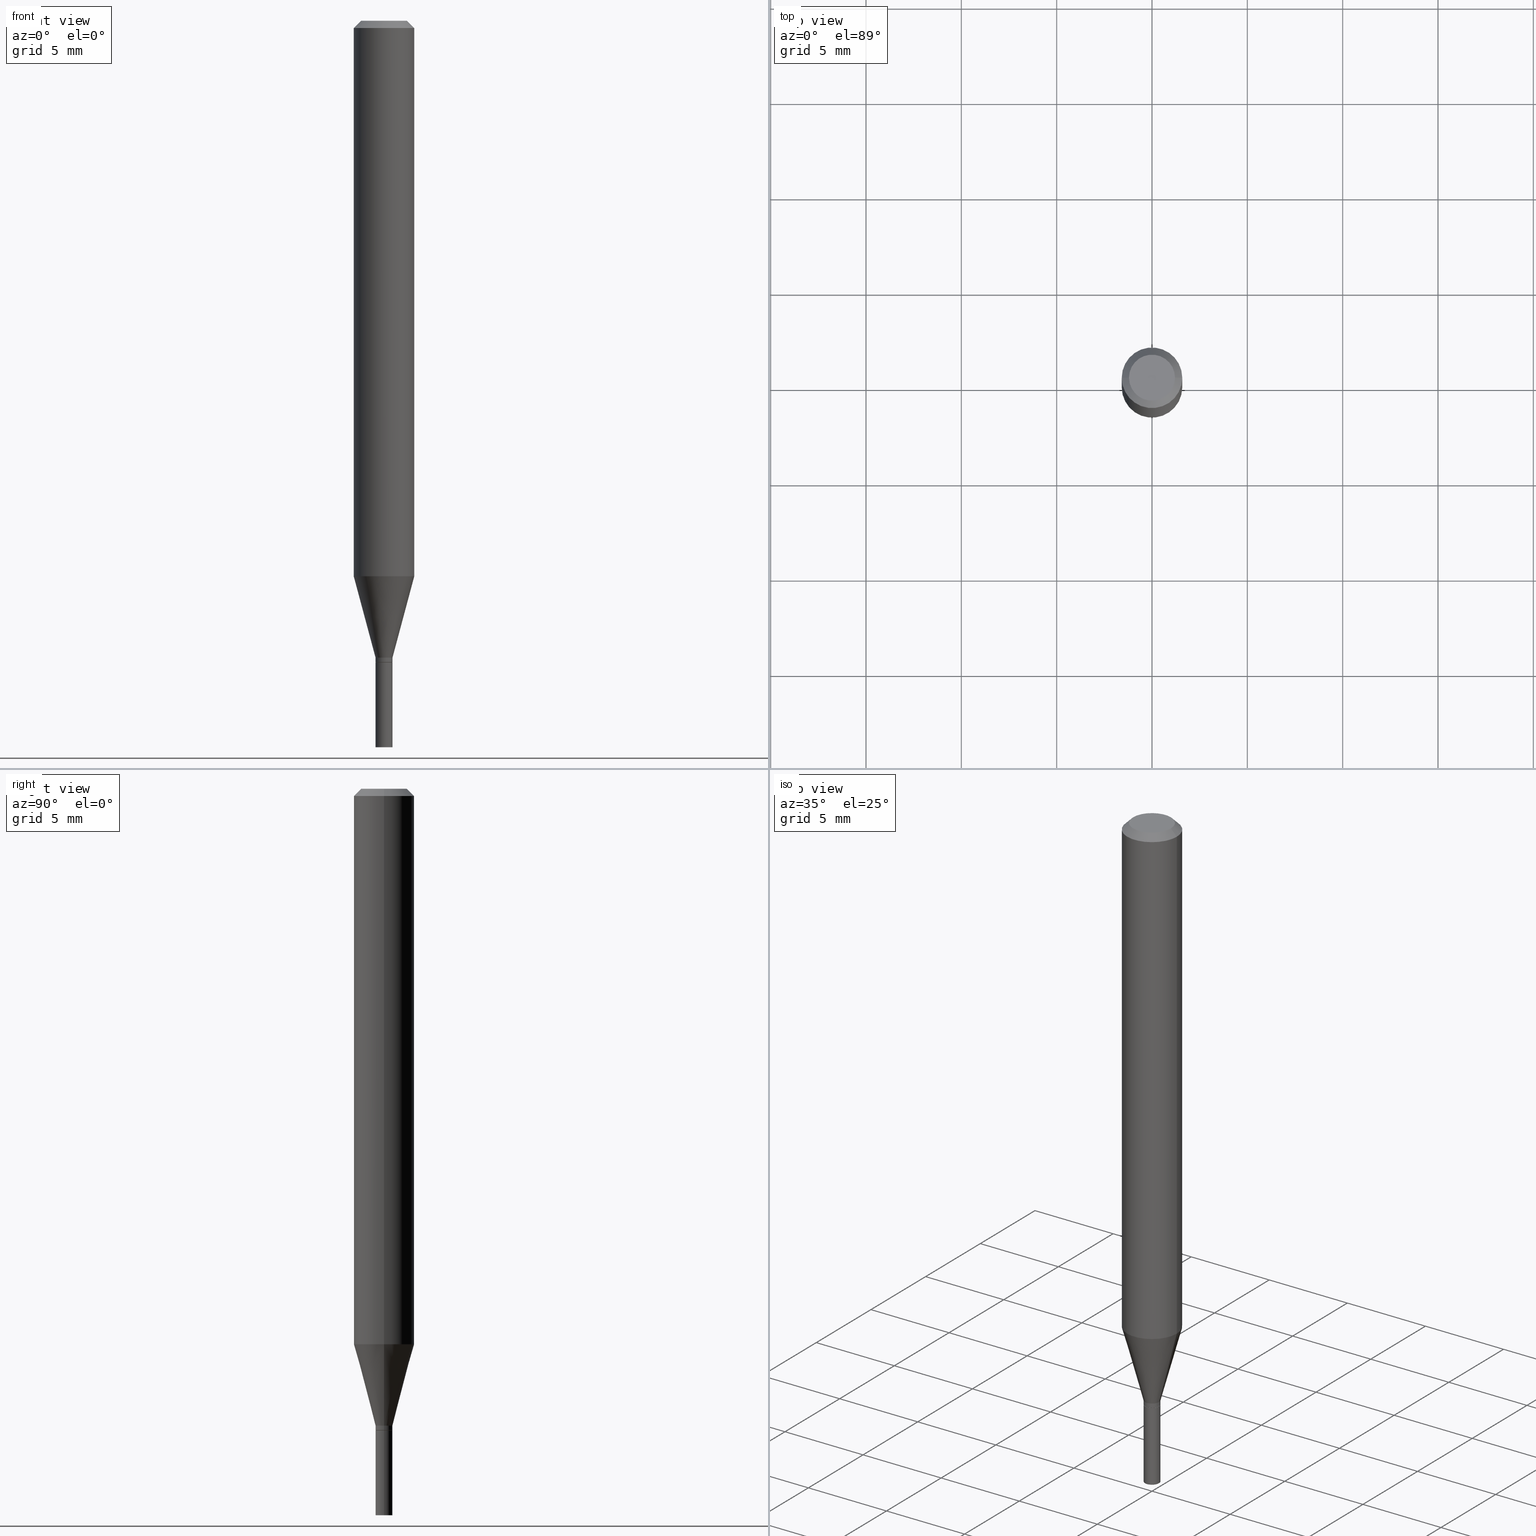
[diagram: canonical four-view strip — front | top / right | iso, engineering-drawing reading convention]
A machine part, canonical four-view strip (front | top / right | iso — engineering-drawing reading convention). The complete STEP part file that produces these views, byte-faithful:
ISO-10303-21;
HEADER;
FILE_DESCRIPTION (( 'STEP AP203' ),
    '1' );
FILE_NAME ('04188.STEP',
    '2024-03-14T17:14:41',
    ( '' ),
    ( '' ),
    'SwSTEP 2.0',
    'SolidWorks 2023',
    '' );
FILE_SCHEMA (( 'CONFIG_CONTROL_DESIGN' ));
ENDSEC;

DATA;
#1 = ORIENTED_EDGE ( 'NONE', *, *, #256, .T. ) ;
#2 = EDGE_CURVE ( 'NONE', #260, #407, #321, .T. ) ;
#3 = VERTEX_POINT ( 'NONE', #448 ) ;
#4 = DIRECTION ( 'NONE',  ( 1.000000000000000000, -6.982962677686267499E-15, 4.852736867747366768E-29 ) ) ;
#5 = CARTESIAN_POINT ( 'NONE',  ( 0.01749999999999991840, -1.222018468595091202E-16, 8.533309357642848751E-31 ) ) ;
#6 = CONICAL_SURFACE ( 'NONE', #94, 0.01749999999999991840, 0.2617993877991495744 ) ;
#7 = PRODUCT_DEFINITION_FORMATION_WITH_SPECIFIED_SOURCE ( 'ANY', '', #10, .NOT_KNOWN. ) ;
#8 = CARTESIAN_POINT ( 'NONE',  ( -0.01700000000000000122, -4.502771281713841500E-15, -1.325000000000000178 ) ) ;
#9 = COORDINATED_UNIVERSAL_TIME_OFFSET ( 5, 0, .BEHIND. ) ;
#10 = PRODUCT ( '04188', '04188', '', ( #261 ) ) ;
#11 = DIRECTION ( 'NONE',  ( 1.000000000000000000, -6.982962677686280910E-15, 0.000000000000000000 ) ) ;
#12 = DIRECTION ( 'NONE',  ( -1.000000000000000000, 6.982962677686266711E-15, 0.000000000000000000 ) ) ;
#13 = DIRECTION ( 'NONE',  ( 0.7071067811865585639, -7.319954787623292333E-15, -0.7071067811865364705 ) ) ;
#14 = DIRECTION ( 'NONE',  ( 1.000000000000000000, -6.982962677686274599E-15, 0.000000000000000000 ) ) ;
#15 = VECTOR ( 'NONE', #428, 39.37007874015748143 ) ;
#16 = EDGE_CURVE ( 'NONE', #407, #260, #397, .T. ) ;
#17 = ORIENTED_EDGE ( 'NONE', *, *, #2, .T. ) ;
#18 = CARTESIAN_POINT ( 'NONE',  ( 0.01700000000000000122, -4.744923139487835238E-15, -1.325000000000000178 ) ) ;
#19 = DIRECTION ( 'NONE',  ( -1.000000000000000000, 6.982962677686266711E-15, 0.000000000000000000 ) ) ;
#20 = LINE ( 'NONE', #257, #264 ) ;
#21 = ORIENTED_EDGE ( 'NONE', *, *, #457, .F. ) ;
#22 = FACE_OUTER_BOUND ( 'NONE', #402, .T. ) ;
#23 = ORIENTED_EDGE ( 'NONE', *, *, #268, .T. ) ;
#24 = EDGE_CURVE ( 'NONE', #183, #324, #127, .T. ) ;
#25 = CIRCLE ( 'NONE', #357, 0.01749999999999992187 ) ;
#26 = ORIENTED_EDGE ( 'NONE', *, *, #446, .F. ) ;
#27 = APPROVAL_ROLE ( '' ) ;
#28 = DIRECTION ( 'NONE',  ( 1.000000000000000000, -6.982962677686266711E-15, 4.876176775795935793E-29 ) ) ;
#29 = AXIS2_PLACEMENT_3D ( 'NONE', #423, #33, #4 ) ;
#30 = COORDINATED_UNIVERSAL_TIME_OFFSET ( 5, 0, .BEHIND. ) ;
#31 = LINE ( 'NONE', #335, #425 ) ;
#32 = DIRECTION ( 'NONE',  ( -2.445468806185136597E-29, 3.491481338843145583E-15, 1.000000000000000000 ) ) ;
#33 = DIRECTION ( 'NONE',  ( -2.445468806185136597E-29, 3.491481338843145583E-15, 1.000000000000000000 ) ) ;
#34 = VECTOR ( 'NONE', #13, 39.37007874015748143 ) ;
#35 = ORIENTED_EDGE ( 'NONE', *, *, #316, .T. ) ;
#36 = EDGE_CURVE ( 'NONE', #61, #152, #202, .T. ) ;
#37 = APPLICATION_CONTEXT ( 'configuration controlled 3d designs of mechanical parts and assemblies' ) ;
#38 =( NAMED_UNIT ( * ) PLANE_ANGLE_UNIT ( ) SI_UNIT ( $, .RADIAN. ) );
#39 = EDGE_LOOP ( 'NONE', ( #437, #278, #126, #275 ) ) ;
#40 = CARTESIAN_POINT ( 'NONE',  ( -0.01749999999999992187, -4.500122054539731087E-15, -1.324500000000000233 ) ) ;
#41 = ADVANCED_FACE ( 'NONE', ( #377 ), #55, .F. ) ;
#42 = PRODUCT_DEFINITION ( 'UNKNOWN', '', #7, #259 ) ;
#43 = CIRCLE ( 'NONE', #350, 0.01750000000000000167 ) ;
#44 = ORIENTED_EDGE ( 'NONE', *, *, #172, .F. ) ;
#45 = CC_DESIGN_SECURITY_CLASSIFICATION ( #210, ( #7 ) ) ;
#46 = DIRECTION ( 'NONE',  ( -2.445468806185136597E-29, 3.491481338843145583E-15, 1.000000000000000000 ) ) ;
#47 = EDGE_LOOP ( 'NONE', ( #391, #144 ) ) ;
#48 = CARTESIAN_POINT ( 'NONE',  ( 3.240246168195306775E-29, -4.626212773967169051E-15, -1.325000000000000178 ) ) ;
#49 = CARTESIAN_POINT ( 'NONE',  ( 3.240246168195306775E-29, -4.626212773967169051E-15, -1.325000000000000178 ) ) ;
#50 = ADVANCED_FACE ( 'NONE', ( #369 ), #451, .T. ) ;
#51 = DIRECTION ( 'NONE',  ( -2.445468806185136877E-29, 3.491481338843145188E-15, 1.000000000000000000 ) ) ;
#52 = VERTEX_POINT ( 'NONE', #117 ) ;
#53 = AXIS2_PLACEMENT_3D ( 'NONE', #306, #93, #459 ) ;
#54 = CC_DESIGN_PERSON_AND_ORGANIZATION_ASSIGNMENT ( #167, #266, ( #7 ) ) ;
#55 = PLANE ( 'NONE',  #375 ) ;
#56 = LINE ( 'NONE', #363, #105 ) ;
#57 = ORIENTED_EDGE ( 'NONE', *, *, #416, .T. ) ;
#58 = DIRECTION ( 'NONE',  ( 0.7071067811865642261, -2.468850131082431399E-15, 0.7071067811865309194 ) ) ;
#59 = DIRECTION ( 'NONE',  ( 2.445468806185136597E-29, -3.491481338843145583E-15, -1.000000000000000000 ) ) ;
#60 = FACE_OUTER_BOUND ( 'NONE', #213, .T. ) ;
#61 = VERTEX_POINT ( 'NONE', #90 ) ;
#62 = EDGE_LOOP ( 'NONE', ( #190, #139, #176, #113 ) ) ;
#63 = CIRCLE ( 'NONE', #29, 0.04749999999999999362 ) ;
#64 = ADVANCED_FACE ( 'NONE', ( #110 ), #154, .T. ) ;
#65 = PERSON_AND_ORGANIZATION ( #443, #421 ) ;
#66 = CC_DESIGN_APPROVAL ( #98, ( #210 ) ) ;
#67 = DIRECTION ( 'NONE',  ( -2.445468806185136597E-29, 3.491481338843145583E-15, 1.000000000000000000 ) ) ;
#68 = APPROVAL_STATUS ( 'not_yet_approved' ) ;
#69 = COORDINATED_UNIVERSAL_TIME_OFFSET ( 5, 0, .BEHIND. ) ;
#70 = DIRECTION ( 'NONE',  ( -2.445468806185136597E-29, 3.491481338843145583E-15, 1.000000000000000000 ) ) ;
#71 = CIRCLE ( 'NONE', #239, 0.01749999999999991840 ) ;
#72 = LENGTH_MEASURE_WITH_UNIT ( LENGTH_MEASURE( 0.02539999999999999897 ), #389 );
#73 = EDGE_LOOP ( 'NONE', ( #394, #1, #150, #171 ) ) ;
#74 = LINE ( 'NONE', #182, #209 ) ;
#75 = LINE ( 'NONE', #276, #232 ) ;
#76 = CARTESIAN_POINT ( 'NONE',  ( 0.000000000000000000, 0.000000000000000000, 0.000000000000000000 ) ) ;
#77 = CIRCLE ( 'NONE', #186, 0.04749999999999999362 ) ;
#78 = EDGE_LOOP ( 'NONE', ( #124, #212, #83, #89 ) ) ;
#79 = ADVANCED_FACE ( 'NONE', ( #96 ), #380, .T. ) ;
#80 = CARTESIAN_POINT ( 'NONE',  ( 3.668203209277704895E-29, -5.237222008264718177E-15, -1.500000000000000222 ) ) ;
#81 = ADVANCED_BREP_SHAPE_REPRESENTATION ( '04188', ( #333, #328, #405 ), #137 ) ;
#82 = LINE ( 'NONE', #373, #34 ) ;
#83 = ORIENTED_EDGE ( 'NONE', *, *, #217, .T. ) ;
#84 = CARTESIAN_POINT ( 'NONE',  ( 3.576687321579069994E-29, -5.368277968210015545E-15, -1.500000000000000222 ) ) ;
#85 = EDGE_LOOP ( 'NONE', ( #431, #119, #189, #295 ) ) ;
#86 = VECTOR ( 'NONE', #88, 39.37007874015748143 ) ;
#87 = DIMENSIONAL_EXPONENTS ( 1.000000000000000000, 0.000000000000000000, 0.000000000000000000, 0.000000000000000000, 0.000000000000000000, 0.000000000000000000, 0.000000000000000000 ) ;
#88 = DIRECTION ( 'NONE',  ( -2.445468806185136877E-29, 3.491481338843145188E-15, 1.000000000000000000 ) ) ;
#89 = ORIENTED_EDGE ( 'NONE', *, *, #172, .T. ) ;
#90 = CARTESIAN_POINT ( 'NONE',  ( -0.01749999999999991840, -4.013897186894268537E-15, -1.314999999999999947 ) ) ;
#91 = ORIENTED_EDGE ( 'NONE', *, *, #195, .T. ) ;
#92 = FACE_OUTER_BOUND ( 'NONE', #47, .T. ) ;
#93 = DIRECTION ( 'NONE',  ( -2.438088387897960049E-29, 3.491481338843145188E-15, 1.000000000000000000 ) ) ;
#94 = AXIS2_PLACEMENT_3D ( 'NONE', #220, #118, #291 ) ;
#95 = APPROVAL_ROLE ( '' ) ;
#96 = FACE_OUTER_BOUND ( 'NONE', #208, .T. ) ;
#97 = CARTESIAN_POINT ( 'NONE',  ( 0.01749999999999991840, -4.713499807438245807E-15, -1.314999999999999947 ) ) ;
#98 = APPROVAL ( #68, 'UNSPECIFIED' ) ;
#99 = CONICAL_SURFACE ( 'NONE', #128, 0.06250000000000000000, 0.7853981633974639331 ) ;
#100 = PERSON_AND_ORGANIZATION_ROLE ( 'creator' ) ;
#101 = DIRECTION ( 'NONE',  ( -2.445468806185136597E-29, 3.491481338843145583E-15, 1.000000000000000000 ) ) ;
#102 = EDGE_CURVE ( 'NONE', #299, #161, #25, .T. ) ;
#103 = AXIS2_PLACEMENT_3D ( 'NONE', #329, #59, #19 ) ;
#104 = FACE_OUTER_BOUND ( 'NONE', #85, .T. ) ;
#105 = VECTOR ( 'NONE', #319, 39.37007874015748143 ) ;
#106 = LOCAL_TIME ( 13, 14, 41.00000000000000000, #30 ) ;
#107 = ORIENTED_EDGE ( 'NONE', *, *, #316, .F. ) ;
#108 = ORIENTED_EDGE ( 'NONE', *, *, #457, .T. ) ;
#109 = EDGE_CURVE ( 'NONE', #285, #351, #149, .T. ) ;
#110 = FACE_OUTER_BOUND ( 'NONE', #371, .T. ) ;
#111 = APPLICATION_CONTEXT ( 'configuration controlled 3d designs of mechanical parts and assemblies' ) ;
#112 = DIRECTION ( 'NONE',  ( 1.000000000000000000, -6.982962677686268288E-15, 4.876176775795936353E-29 ) ) ;
#113 = ORIENTED_EDGE ( 'NONE', *, *, #109, .F. ) ;
#114 = DIRECTION ( 'NONE',  ( 1.000000000000000000, -6.982962677686248567E-15, 0.000000000000000000 ) ) ;
#115 = EDGE_LOOP ( 'NONE', ( #35, #427, #435, #327 ) ) ;
#116 = ADVANCED_FACE ( 'NONE', ( #92 ), #125, .F. ) ;
#117 = CARTESIAN_POINT ( 'NONE',  ( 0.04749999999999999362, -4.035134999187586019E-16, -4.684051019975741414E-16 ) ) ;
#118 = DIRECTION ( 'NONE',  ( -2.445468806185136597E-29, 3.491481338843145583E-15, 1.000000000000000000 ) ) ;
#119 = ORIENTED_EDGE ( 'NONE', *, *, #249, .T. ) ;
#120 = CONICAL_SURFACE ( 'NONE', #365, 0.01749999999999991840, 0.2617993877991495744 ) ;
#121 = PERSON_AND_ORGANIZATION_ROLE ( 'design_owner' ) ;
#122 = DIRECTION ( 'NONE',  ( 1.000000000000000000, -6.982962677686267499E-15, 4.852736867747366768E-29 ) ) ;
#123 = CARTESIAN_POINT ( 'NONE',  ( 0.000000000000000000, 0.000000000000000000, 0.000000000000000000 ) ) ;
#124 = ORIENTED_EDGE ( 'NONE', *, *, #256, .F. ) ;
#125 = PLANE ( 'NONE',  #403 ) ;
#126 = ORIENTED_EDGE ( 'NONE', *, *, #392, .T. ) ;
#127 = CIRCLE ( 'NONE', #246, 0.01750000000000000167 ) ;
#128 = AXIS2_PLACEMENT_3D ( 'NONE', #242, #348, #12 ) ;
#129 = DATE_AND_TIME ( #132, #240 ) ;
#130 = EDGE_CURVE ( 'NONE', #152, #61, #71, .T. ) ;
#131 = DATE_TIME_ROLE ( 'classification_date' ) ;
#132 = CALENDAR_DATE ( 2024, 14, 3 ) ;
#133 = AXIS2_PLACEMENT_3D ( 'NONE', #409, #193, #14 ) ;
#134 = EDGE_CURVE ( 'NONE', #300, #52, #63, .T. ) ;
#135 = CIRCLE ( 'NONE', #398, 0.06250000000000000000 ) ;
#136 = SHAPE_DEFINITION_REPRESENTATION ( #244, #81 ) ;
#137 =( GEOMETRIC_REPRESENTATION_CONTEXT ( 3 ) GLOBAL_UNCERTAINTY_ASSIGNED_CONTEXT ( ( #301 ) ) GLOBAL_UNIT_ASSIGNED_CONTEXT ( ( #206, #38, #277 ) ) REPRESENTATION_CONTEXT ( 'NONE', 'WORKASPACE' ) );
#138 = CARTESIAN_POINT ( 'NONE',  ( 0.000000000000000000, 0.000000000000000000, 0.000000000000000000 ) ) ;
#139 = ORIENTED_EDGE ( 'NONE', *, *, #36, .T. ) ;
#140 = ORIENTED_EDGE ( 'NONE', *, *, #438, .T. ) ;
#141 = VECTOR ( 'NONE', #399, 39.37007874015748143 ) ;
#142 = CC_DESIGN_APPROVAL ( #331, ( #7 ) ) ;
#143 = LINE ( 'NONE', #5, #86 ) ;
#144 = ORIENTED_EDGE ( 'NONE', *, *, #411, .T. ) ;
#145 = CARTESIAN_POINT ( 'NONE',  ( 0.01750000000000000167, -4.748414620826678245E-15, -1.325000000000000178 ) ) ;
#146 = EDGE_CURVE ( 'NONE', #351, #3, #75, .T. ) ;
#147 = CARTESIAN_POINT ( 'NONE',  ( -0.06250000000000000000, 4.440892098500626162E-16, -3.074334431409316114E-30 ) ) ;
#148 = CYLINDRICAL_SURFACE ( 'NONE', #162, 0.06250000000000000000 ) ;
#149 = CIRCLE ( 'NONE', #302, 0.06250000000000000000 ) ;
#150 = ORIENTED_EDGE ( 'NONE', *, *, #446, .T. ) ;
#151 = CARTESIAN_POINT ( 'NONE',  ( 3.239023433792214535E-29, -4.624467033297747547E-15, -1.324500000000000233 ) ) ;
#152 = VERTEX_POINT ( 'NONE', #313 ) ;
#153 = DIRECTION ( 'NONE',  ( -0.7071067811865642261, 7.493145998870414114E-15, 0.7071067811865309194 ) ) ;
#154 = CYLINDRICAL_SURFACE ( 'NONE', #178, 0.06250000000000000000 ) ;
#155 = DIRECTION ( 'NONE',  ( -0.2588190451025209060, 5.211531920934547097E-15, 0.9659258262890682012 ) ) ;
#156 = CARTESIAN_POINT ( 'NONE',  ( 3.240246168195306775E-29, -4.626212773967169051E-15, -1.325000000000000178 ) ) ;
#157 = ADVANCED_FACE ( 'NONE', ( #104 ), #395, .T. ) ;
#158 = DIRECTION ( 'NONE',  ( 1.000000000000000000, -6.982962677686266711E-15, 0.000000000000000000 ) ) ;
#159 = FACE_OUTER_BOUND ( 'NONE', #289, .T. ) ;
#160 = CLOSED_SHELL ( 'NONE', ( #157, #181, #50, #64, #296, #203, #424, #378, #116, #352, #197, #304 ) ) ;
#161 = VERTEX_POINT ( 'NONE', #40 ) ;
#162 = AXIS2_PLACEMENT_3D ( 'NONE', #185, #294, #404 ) ;
#163 = DIRECTION ( 'NONE',  ( 1.000000000000000000, -6.982962677686280910E-15, 0.000000000000000000 ) ) ;
#164 = ORIENTED_EDGE ( 'NONE', *, *, #307, .T. ) ;
#165 = DATE_AND_TIME ( #346, #179 ) ;
#166 = CARTESIAN_POINT ( 'NONE',  ( 2.805093857648105746E-29, -4.004930601817881115E-15, -1.147057713659400457 ) ) ;
#167 = PERSON_AND_ORGANIZATION ( #443, #421 ) ;
#168 = DIRECTION ( 'NONE',  ( -2.445468806185136597E-29, 3.491481338843145583E-15, 1.000000000000000000 ) ) ;
#169 = DIRECTION ( 'NONE',  ( -2.445468806185136597E-29, 3.491481338843145583E-15, 1.000000000000000000 ) ) ;
#170 = COORDINATED_UNIVERSAL_TIME_OFFSET ( 5, 0, .BEHIND. ) ;
#171 = ORIENTED_EDGE ( 'NONE', *, *, #217, .F. ) ;
#172 = EDGE_CURVE ( 'NONE', #221, #3, #413, .T. ) ;
#173 = FACE_OUTER_BOUND ( 'NONE', #62, .T. ) ;
#174 = ORIENTED_EDGE ( 'NONE', *, *, #340, .F. ) ;
#175 = APPROVAL ( #337, 'UNSPECIFIED' ) ;
#176 = ORIENTED_EDGE ( 'NONE', *, *, #358, .T. ) ;
#177 = FACE_OUTER_BOUND ( 'NONE', #293, .T. ) ;
#178 = AXIS2_PLACEMENT_3D ( 'NONE', #343, #67, #28 ) ;
#179 = LOCAL_TIME ( 13, 14, 41.00000000000000000, #414 ) ;
#180 = VERTEX_POINT ( 'NONE', #463 ) ;
#181 = ADVANCED_FACE ( 'NONE', ( #177 ), #376, .T. ) ;
#182 = CARTESIAN_POINT ( 'NONE',  ( -0.06250000000000000000, 3.840629472727444916E-16, -0.01499999999999999944 ) ) ;
#183 = VERTEX_POINT ( 'NONE', #145 ) ;
#184 = DIRECTION ( 'NONE',  ( -2.445468806185136597E-29, 3.491481338843145583E-15, 1.000000000000000000 ) ) ;
#185 = CARTESIAN_POINT ( 'NONE',  ( 0.000000000000000000, 0.000000000000000000, 0.000000000000000000 ) ) ;
#186 = AXIS2_PLACEMENT_3D ( 'NONE', #290, #433, #122 ) ;
#187 = DIRECTION ( 'NONE',  ( 2.438088387897960049E-29, -3.491481338843145188E-15, -1.000000000000000000 ) ) ;
#188 = DIRECTION ( 'NONE',  ( 1.000000000000000000, -6.982962677686248567E-15, 0.000000000000000000 ) ) ;
#189 = ORIENTED_EDGE ( 'NONE', *, *, #130, .F. ) ;
#190 = ORIENTED_EDGE ( 'NONE', *, *, #268, .F. ) ;
#191 = ORIENTED_EDGE ( 'NONE', *, *, #307, .F. ) ;
#192 = AXIS2_PLACEMENT_3D ( 'NONE', #156, #216, #255 ) ;
#193 = DIRECTION ( 'NONE',  ( -2.445468806185136597E-29, 3.491481338843145583E-15, 1.000000000000000000 ) ) ;
#194 = CIRCLE ( 'NONE', #464, 0.01750000000000000167 ) ;
#195 = EDGE_CURVE ( 'NONE', #351, #285, #271, .T. ) ;
#196 = CARTESIAN_POINT ( 'NONE',  ( 0.01750000000000000167, -5.359423855124228160E-15, -1.500000000000000222 ) ) ;
#197 = ADVANCED_FACE ( 'NONE', ( #274 ), #420, .T. ) ;
#198 = PERSON_AND_ORGANIZATION_ROLE ( 'design_supplier' ) ;
#199 = AXIS2_PLACEMENT_3D ( 'NONE', #123, #430, #112 ) ;
#200 = APPROVAL_PERSON_ORGANIZATION ( #342, #98, #95 ) ;
#201 = APPROVAL_STATUS ( 'not_yet_approved' ) ;
#202 = CIRCLE ( 'NONE', #461, 0.01749999999999991840 ) ;
#203 = ADVANCED_FACE ( 'NONE', ( #173 ), #120, .T. ) ;
#204 = AXIS2_PLACEMENT_3D ( 'NONE', #323, #383, #344 ) ;
#205 = DIRECTION ( 'NONE',  ( 1.000000000000000000, -6.982962677686274599E-15, 0.000000000000000000 ) ) ;
#206 =( CONVERSION_BASED_UNIT ( 'INCH', #72 ) LENGTH_UNIT ( ) NAMED_UNIT ( #87 ) );
#207 = CC_DESIGN_DATE_AND_TIME_ASSIGNMENT ( #165, #131, ( #210 ) ) ;
#208 = EDGE_LOOP ( 'NONE', ( #174, #108, #140, #191 ) ) ;
#209 = VECTOR ( 'NONE', #353, 39.37007874015748143 ) ;
#210 = SECURITY_CLASSIFICATION ( '', '', #233 ) ;
#211 = PRODUCT_RELATED_PRODUCT_CATEGORY ( 'detail', '', ( #10 ) ) ;
#212 = ORIENTED_EDGE ( 'NONE', *, *, #134, .F. ) ;
#213 = EDGE_LOOP ( 'NONE', ( #412, #336, #245, #227 ) ) ;
#214 = DIRECTION ( 'NONE',  ( 1.000000000000000000, -6.982962677686265922E-15, 4.876176775795936353E-29 ) ) ;
#215 = FACE_OUTER_BOUND ( 'NONE', #354, .T. ) ;
#216 = DIRECTION ( 'NONE',  ( -2.445468806185136597E-29, 3.491481338843145583E-15, 1.000000000000000000 ) ) ;
#217 = EDGE_CURVE ( 'NONE', #300, #221, #74, .T. ) ;
#218 = DIRECTION ( 'NONE',  ( -2.445468806185136597E-29, 3.491481338843145583E-15, 1.000000000000000000 ) ) ;
#219 = AXIS2_PLACEMENT_3D ( 'NONE', #390, #70, #205 ) ;
#220 = CARTESIAN_POINT ( 'NONE',  ( 3.215791480133454670E-29, -4.591297960578735824E-15, -1.314999999999999947 ) ) ;
#221 = VERTEX_POINT ( 'NONE', #456 ) ;
#222 = PERSON_AND_ORGANIZATION ( #443, #421 ) ;
#223 = LINE ( 'NONE', #396, #141 ) ;
#224 = ORIENTED_EDGE ( 'NONE', *, *, #16, .F. ) ;
#225 = DIRECTION ( 'NONE',  ( 1.000000000000000000, -6.982962677686265922E-15, 4.876176775795935793E-29 ) ) ;
#226 = EDGE_CURVE ( 'NONE', #299, #152, #143, .T. ) ;
#227 = ORIENTED_EDGE ( 'NONE', *, *, #36, .F. ) ;
#228 = APPLICATION_PROTOCOL_DEFINITION ( 'international standard', 'config_control_design', 1994, #111 ) ;
#229 = AXIS2_PLACEMENT_3D ( 'NONE', #84, #298, #225 ) ;
#230 = DATE_AND_TIME ( #462, #106 ) ;
#231 = APPROVAL_DATE_TIME ( #284, #175 ) ;
#232 = VECTOR ( 'NONE', #237, 39.37007874015748143 ) ;
#233 = SECURITY_CLASSIFICATION_LEVEL ( 'unclassified' ) ;
#234 = CARTESIAN_POINT ( 'NONE',  ( 3.215791480133454670E-29, -4.591297960578735824E-15, -1.314999999999999947 ) ) ;
#235 = DIRECTION ( 'NONE',  ( 1.000000000000000000, -6.982962677686262766E-15, 0.000000000000000000 ) ) ;
#236 = ADVANCED_FACE ( 'NONE', ( #159 ), #326, .F. ) ;
#237 = DIRECTION ( 'NONE',  ( -2.445468806185136877E-29, 3.491481338843145188E-15, 1.000000000000000000 ) ) ;
#238 = ORIENTED_EDGE ( 'NONE', *, *, #146, .F. ) ;
#239 = AXIS2_PLACEMENT_3D ( 'NONE', #234, #388, #347 ) ;
#240 = LOCAL_TIME ( 13, 14, 41.00000000000000000, #69 ) ;
#241 = DIRECTION ( 'NONE',  ( 1.000000000000000000, -6.982962677686266711E-15, 0.000000000000000000 ) ) ;
#242 = CARTESIAN_POINT ( 'NONE',  ( 3.668203209277705088E-31, -5.237222008264718399E-17, -0.01499999999999999944 ) ) ;
#243 = ORIENTED_EDGE ( 'NONE', *, *, #279, .F. ) ;
#244 = PRODUCT_DEFINITION_SHAPE ( 'NONE', 'NONE',  #42 ) ;
#245 = ORIENTED_EDGE ( 'NONE', *, *, #226, .T. ) ;
#246 = AXIS2_PLACEMENT_3D ( 'NONE', #49, #184, #455 ) ;
#247 = DIRECTION ( 'NONE',  ( -2.445468806185136597E-29, 3.491481338843145583E-15, 1.000000000000000000 ) ) ;
#248 = ORIENTED_EDGE ( 'NONE', *, *, #146, .T. ) ;
#249 = EDGE_CURVE ( 'NONE', #161, #61, #56, .T. ) ;
#250 = EDGE_LOOP ( 'NONE', ( #429, #164 ) ) ;
#251 = CC_DESIGN_PERSON_AND_ORGANIZATION_ASSIGNMENT ( #65, #387, ( #210 ) ) ;
#252 = AXIS2_PLACEMENT_3D ( 'NONE', #151, #370, #11 ) ;
#253 = CARTESIAN_POINT ( 'NONE',  ( 0.01749999999999992187, -4.746668880157256741E-15, -1.324500000000000233 ) ) ;
#254 = LOCAL_TIME ( 13, 14, 41.00000000000000000, #9 ) ;
#255 = DIRECTION ( 'NONE',  ( 1.000000000000000000, -6.982962677686274599E-15, 0.000000000000000000 ) ) ;
#256 = EDGE_CURVE ( 'NONE', #52, #3, #82, .T. ) ;
#257 = CARTESIAN_POINT ( 'NONE',  ( -0.01749999999999991840, -4.466952981820719364E-15, -1.314999999999999947 ) ) ;
#258 = ORIENTED_EDGE ( 'NONE', *, *, #130, .T. ) ;
#259 = DESIGN_CONTEXT ( 'detailed design', #111, 'design' ) ;
#260 = VERTEX_POINT ( 'NONE', #434 ) ;
#261 = MECHANICAL_CONTEXT ( 'NONE', #37, 'mechanical' ) ;
#262 = DATE_TIME_ROLE ( 'creation_date' ) ;
#263 = LINE ( 'NONE', #97, #15 ) ;
#264 = VECTOR ( 'NONE', #155, 39.37007874015748143 ) ;
#265 = APPROVAL_PERSON_ORGANIZATION ( #308, #331, #27 ) ;
#266 = PERSON_AND_ORGANIZATION_ROLE ( 'creator' ) ;
#267 = DIRECTION ( 'NONE',  ( 2.438088387897960049E-29, -3.491481338843145188E-15, -1.000000000000000000 ) ) ;
#268 = EDGE_CURVE ( 'NONE', #61, #285, #20, .T. ) ;
#269 = CARTESIAN_POINT ( 'NONE',  ( 3.215791480133454670E-29, -4.591297960578735824E-15, -1.314999999999999947 ) ) ;
#270 = DIRECTION ( 'NONE',  ( -1.000000000000000000, 6.982962677686265922E-15, -4.876176775795935793E-29 ) ) ;
#271 = CIRCLE ( 'NONE', #441, 0.06250000000000000000 ) ;
#272 = CC_DESIGN_APPROVAL ( #175, ( #42 ) ) ;
#273 = DIRECTION ( 'NONE',  ( -2.445468806185136597E-29, 3.491481338843145583E-15, 1.000000000000000000 ) ) ;
#274 = FACE_OUTER_BOUND ( 'NONE', #39, .T. ) ;
#275 = ORIENTED_EDGE ( 'NONE', *, *, #288, .F. ) ;
#276 = CARTESIAN_POINT ( 'NONE',  ( 0.06250000000000000000, -4.364351673553916694E-16, 3.047610484872459871E-30 ) ) ;
#277 =( NAMED_UNIT ( * ) SI_UNIT ( $, .STERADIAN. ) SOLID_ANGLE_UNIT ( ) );
#278 = ORIENTED_EDGE ( 'NONE', *, *, #16, .T. ) ;
#279 = EDGE_CURVE ( 'NONE', #285, #221, #439, .T. ) ;
#280 = CIRCLE ( 'NONE', #252, 0.01749999999999992187 ) ;
#281 = CARTESIAN_POINT ( 'NONE',  ( 3.215791480133454670E-29, -4.591297960578735824E-15, -1.314999999999999947 ) ) ;
#282 = CARTESIAN_POINT ( 'NONE',  ( 3.668203209277705088E-31, -5.237222008264718399E-17, -0.01499999999999999944 ) ) ;
#283 = CALENDAR_DATE ( 2024, 14, 3 ) ;
#284 = DATE_AND_TIME ( #283, #254 ) ;
#285 = VERTEX_POINT ( 'NONE', #444 ) ;
#286 = LINE ( 'NONE', #359, #452 ) ;
#287 = VECTOR ( 'NONE', #51, 39.37007874015748143 ) ;
#288 = EDGE_CURVE ( 'NONE', #161, #299, #280, .T. ) ;
#289 = EDGE_LOOP ( 'NONE', ( #107, #21 ) ) ;
#290 = CARTESIAN_POINT ( 'NONE',  ( 1.145470065593040868E-44, -1.635427672643458845E-30, -4.684051019975766066E-16 ) ) ;
#291 = DIRECTION ( 'NONE',  ( 1.000000000000000000, -6.982962677686281699E-15, 0.000000000000000000 ) ) ;
#292 = CC_DESIGN_DATE_AND_TIME_ASSIGNMENT ( #129, #262, ( #42 ) ) ;
#293 = EDGE_LOOP ( 'NONE', ( #17, #57, #374, #364 ) ) ;
#294 = DIRECTION ( 'NONE',  ( -2.445468806185136597E-29, 3.491481338843145583E-15, 1.000000000000000000 ) ) ;
#295 = ORIENTED_EDGE ( 'NONE', *, *, #226, .F. ) ;
#296 = ADVANCED_FACE ( 'NONE', ( #215 ), #6, .T. ) ;
#297 = CIRCLE ( 'NONE', #204, 0.01750000000000000167 ) ;
#298 = DIRECTION ( 'NONE',  ( -2.438088387897960049E-29, 3.491481338843145188E-15, 1.000000000000000000 ) ) ;
#299 = VERTEX_POINT ( 'NONE', #253 ) ;
#300 = VERTEX_POINT ( 'NONE', #406 ) ;
#301 = UNCERTAINTY_MEASURE_WITH_UNIT (LENGTH_MEASURE( 1.000000000000000082E-05 ), #206, 'distance_accuracy_value', 'NONE');
#302 = AXIS2_PLACEMENT_3D ( 'NONE', #166, #101, #338 ) ;
#303 = CARTESIAN_POINT ( 'NONE',  ( 0.06250000000000000000, -4.441365769173271995E-15, -1.147057713659400457 ) ) ;
#304 = ADVANCED_FACE ( 'NONE', ( #60 ), #408, .T. ) ;
#305 = DIRECTION ( 'NONE',  ( 1.000000000000000000, -6.982962677686265922E-15, 4.876176775795936353E-29 ) ) ;
#306 = CARTESIAN_POINT ( 'NONE',  ( 3.240246168195306775E-29, -4.626212773967169051E-15, -1.325000000000000178 ) ) ;
#307 = EDGE_CURVE ( 'NONE', #324, #183, #43, .T. ) ;
#308 = PERSON_AND_ORGANIZATION ( #443, #421 ) ;
#309 = DIRECTION ( 'NONE',  ( 1.000000000000000000, -6.982962677686268288E-15, 4.876176775795936353E-29 ) ) ;
#310 = AXIS2_PLACEMENT_3D ( 'NONE', #282, #273, #241 ) ;
#311 = AXIS2_PLACEMENT_3D ( 'NONE', #345, #32, #305 ) ;
#312 = DATE_AND_TIME ( #418, #386 ) ;
#313 = CARTESIAN_POINT ( 'NONE',  ( 0.01749999999999991840, -4.713499807438245807E-15, -1.314999999999999947 ) ) ;
#314 = DIRECTION ( 'NONE',  ( -2.445468806185136597E-29, 3.491481338843145583E-15, 1.000000000000000000 ) ) ;
#315 = CARTESIAN_POINT ( 'NONE',  ( 3.240246168195306775E-29, -4.626212773967169051E-15, -1.325000000000000178 ) ) ;
#316 = EDGE_CURVE ( 'NONE', #330, #180, #297, .T. ) ;
#317 = DIRECTION ( 'NONE',  ( 1.000000000000000000, -6.982962677686274599E-15, 0.000000000000000000 ) ) ;
#318 = LINE ( 'NONE', #18, #385 ) ;
#319 = DIRECTION ( 'NONE',  ( -2.445468806185136877E-29, 3.491481338843145188E-15, 1.000000000000000000 ) ) ;
#320 = ORIENTED_EDGE ( 'NONE', *, *, #279, .T. ) ;
#321 = CIRCLE ( 'NONE', #133, 0.01700000000000000122 ) ;
#322 = CARTESIAN_POINT ( 'NONE',  ( 3.668203209277705088E-31, -5.237222008264718399E-17, -0.01499999999999999944 ) ) ;
#323 = CARTESIAN_POINT ( 'NONE',  ( 3.668203209277704895E-29, -5.237222008264718177E-15, -1.500000000000000222 ) ) ;
#324 = VERTEX_POINT ( 'NONE', #450 ) ;
#325 = DIRECTION ( 'NONE',  ( -1.000000000000000000, 6.982962677686265922E-15, -4.876176775795935793E-29 ) ) ;
#326 = PLANE ( 'NONE',  #229 ) ;
#327 = ORIENTED_EDGE ( 'NONE', *, *, #438, .F. ) ;
#328 = MANIFOLD_SOLID_BREP ( 'Body-Move/Copy2[2]', #160 ) ;
#329 = CARTESIAN_POINT ( 'NONE',  ( 3.668203209277705088E-31, -5.237222008264718399E-17, -0.01499999999999999944 ) ) ;
#330 = VERTEX_POINT ( 'NONE', #196 ) ;
#331 = APPROVAL ( #201, 'UNSPECIFIED' ) ;
#332 = APPLICATION_PROTOCOL_DEFINITION ( 'international standard', 'config_control_design', 1994, #37 ) ;
#333 = MANIFOLD_SOLID_BREP ( 'Body-Move/Copy2[1]', #356 ) ;
#334 = AXIS2_PLACEMENT_3D ( 'NONE', #315, #393, #317 ) ;
#335 = CARTESIAN_POINT ( 'NONE',  ( -0.01750000000000000167, 1.243449787580175444E-16, -8.608136407946085539E-31 ) ) ;
#336 = ORIENTED_EDGE ( 'NONE', *, *, #288, .T. ) ;
#337 = APPROVAL_STATUS ( 'not_yet_approved' ) ;
#338 = DIRECTION ( 'NONE',  ( 1.000000000000000000, -6.982962677686262766E-15, 0.000000000000000000 ) ) ;
#339 = DIRECTION ( 'NONE',  ( 1.000000000000000000, -6.982962677686281699E-15, 0.000000000000000000 ) ) ;
#340 = EDGE_CURVE ( 'NONE', #180, #324, #31, .T. ) ;
#341 = DIRECTION ( 'NONE',  ( 1.000000000000000000, 0.000000000000000000, 0.000000000000000000 ) ) ;
#342 = PERSON_AND_ORGANIZATION ( #443, #421 ) ;
#343 = CARTESIAN_POINT ( 'NONE',  ( 0.000000000000000000, 0.000000000000000000, 0.000000000000000000 ) ) ;
#344 = DIRECTION ( 'NONE',  ( 1.000000000000000000, -6.982962677686248567E-15, 0.000000000000000000 ) ) ;
#345 = CARTESIAN_POINT ( 'NONE',  ( 0.000000000000000000, 0.000000000000000000, 0.000000000000000000 ) ) ;
#346 = CALENDAR_DATE ( 2024, 14, 3 ) ;
#347 = DIRECTION ( 'NONE',  ( 1.000000000000000000, -6.982962677686281699E-15, 0.000000000000000000 ) ) ;
#348 = DIRECTION ( 'NONE',  ( 2.445468806185136597E-29, -3.491481338843145583E-15, -1.000000000000000000 ) ) ;
#349 = DIRECTION ( 'NONE',  ( 1.000000000000000000, -6.982962677686281699E-15, 0.000000000000000000 ) ) ;
#350 = AXIS2_PLACEMENT_3D ( 'NONE', #48, #247, #188 ) ;
#351 = VERTEX_POINT ( 'NONE', #303 ) ;
#352 = ADVANCED_FACE ( 'NONE', ( #384 ), #410, .F. ) ;
#353 = DIRECTION ( 'NONE',  ( -0.7071067811865585639, 2.468850131082372629E-15, -0.7071067811865364705 ) ) ;
#354 = EDGE_LOOP ( 'NONE', ( #258, #23, #440, #445 ) ) ;
#355 = CC_DESIGN_PERSON_AND_ORGANIZATION_ASSIGNMENT ( #222, #121, ( #10 ) ) ;
#356 = CLOSED_SHELL ( 'NONE', ( #465, #236, #79, #41 ) ) ;
#357 = AXIS2_PLACEMENT_3D ( 'NONE', #419, #168, #163 ) ;
#358 = EDGE_CURVE ( 'NONE', #152, #351, #263, .T. ) ;
#359 = CARTESIAN_POINT ( 'NONE',  ( -0.01700000000000000122, -4.505420508887951912E-15, -1.325000000000000178 ) ) ;
#360 = CARTESIAN_POINT ( 'NONE',  ( 1.222018468595420551E-16, 0.01749999999999537342, -1.325000000000000178 ) ) ;
#361 = ORIENTED_EDGE ( 'NONE', *, *, #2, .F. ) ;
#362 = APPROVAL_ROLE ( '' ) ;
#363 = CARTESIAN_POINT ( 'NONE',  ( -0.01749999999999991840, 1.243449787580169527E-16, -8.608136407946045251E-31 ) ) ;
#364 = ORIENTED_EDGE ( 'NONE', *, *, #392, .F. ) ;
#365 = AXIS2_PLACEMENT_3D ( 'NONE', #281, #46, #339 ) ;
#366 = ORIENTED_EDGE ( 'NONE', *, *, #109, .T. ) ;
#367 = PERSON_AND_ORGANIZATION ( #443, #421 ) ;
#368 = DIRECTION ( 'NONE',  ( -2.445468806185136597E-29, 3.491481338843145583E-15, 1.000000000000000000 ) ) ;
#369 = FACE_OUTER_BOUND ( 'NONE', #73, .T. ) ;
#370 = DIRECTION ( 'NONE',  ( -2.445468806185136597E-29, 3.491481338843145583E-15, 1.000000000000000000 ) ) ;
#371 = EDGE_LOOP ( 'NONE', ( #91, #320, #26, #238 ) ) ;
#372 = CARTESIAN_POINT ( 'NONE',  ( 0.000000000000000000, 0.000000000000000000, 0.000000000000000000 ) ) ;
#373 = CARTESIAN_POINT ( 'NONE',  ( 0.06250000000000000000, -4.811533449433679005E-16, -0.01499999999999999944 ) ) ;
#374 = ORIENTED_EDGE ( 'NONE', *, *, #102, .F. ) ;
#375 = AXIS2_PLACEMENT_3D ( 'NONE', #360, #187, #325 ) ;
#376 = CONICAL_SURFACE ( 'NONE', #334, 0.01700000000000000122, 0.7853981633974718157 ) ;
#377 = FACE_OUTER_BOUND ( 'NONE', #250, .T. ) ;
#378 = ADVANCED_FACE ( 'NONE', ( #466 ), #99, .T. ) ;
#379 = APPROVAL_DATE_TIME ( #230, #98 ) ;
#380 = CYLINDRICAL_SURFACE ( 'NONE', #311, 0.01750000000000000167 ) ;
#381 = CC_DESIGN_PERSON_AND_ORGANIZATION_ASSIGNMENT ( #415, #198, ( #7 ) ) ;
#382 = PERSON_AND_ORGANIZATION ( #443, #421 ) ;
#383 = DIRECTION ( 'NONE',  ( -2.445468806185136597E-29, 3.491481338843145583E-15, 1.000000000000000000 ) ) ;
#384 = FACE_OUTER_BOUND ( 'NONE', #400, .T. ) ;
#385 = VECTOR ( 'NONE', #58, 39.37007874015748143 ) ;
#386 = LOCAL_TIME ( 13, 14, 41.00000000000000000, #170 ) ;
#387 = PERSON_AND_ORGANIZATION_ROLE ( 'classification_officer' ) ;
#388 = DIRECTION ( 'NONE',  ( -2.445468806185136597E-29, 3.491481338843145583E-15, 1.000000000000000000 ) ) ;
#389 =( LENGTH_UNIT ( ) NAMED_UNIT ( * ) SI_UNIT ( $, .METRE. ) );
#390 = CARTESIAN_POINT ( 'NONE',  ( 3.240246168195306775E-29, -4.626212773967169051E-15, -1.325000000000000178 ) ) ;
#391 = ORIENTED_EDGE ( 'NONE', *, *, #134, .T. ) ;
#392 = EDGE_CURVE ( 'NONE', #260, #299, #318, .T. ) ;
#393 = DIRECTION ( 'NONE',  ( -2.445468806185136597E-29, 3.491481338843145583E-15, 1.000000000000000000 ) ) ;
#394 = ORIENTED_EDGE ( 'NONE', *, *, #411, .F. ) ;
#395 = CYLINDRICAL_SURFACE ( 'NONE', #432, 0.01749999999999991840 ) ;
#396 = CARTESIAN_POINT ( 'NONE',  ( 0.01750000000000000167, -1.222018468595096625E-16, 8.533309357642889039E-31 ) ) ;
#397 = CIRCLE ( 'NONE', #192, 0.01700000000000000122 ) ;
#398 = AXIS2_PLACEMENT_3D ( 'NONE', #322, #368, #158 ) ;
#399 = DIRECTION ( 'NONE',  ( -2.445468806185136877E-29, 3.491481338843145188E-15, 1.000000000000000000 ) ) ;
#400 = EDGE_LOOP ( 'NONE', ( #361, #224 ) ) ;
#401 = CYLINDRICAL_SURFACE ( 'NONE', #453, 0.01750000000000000167 ) ;
#402 = EDGE_LOOP ( 'NONE', ( #243, #366, #248, #44 ) ) ;
#403 = AXIS2_PLACEMENT_3D ( 'NONE', #454, #267, #270 ) ;
#404 = DIRECTION ( 'NONE',  ( 1.000000000000000000, -6.982962677686266711E-15, 4.876176775795935793E-29 ) ) ;
#405 = AXIS2_PLACEMENT_3D ( 'NONE', #372, #449, #341 ) ;
#406 = CARTESIAN_POINT ( 'NONE',  ( -0.04749999999999999362, 3.578768372314202617E-16, -4.684051019975790718E-16 ) ) ;
#407 = VERTEX_POINT ( 'NONE', #8 ) ;
#408 = CYLINDRICAL_SURFACE ( 'NONE', #199, 0.01749999999999991840 ) ;
#409 = CARTESIAN_POINT ( 'NONE',  ( 3.240246168195306775E-29, -4.626212773967169051E-15, -1.325000000000000178 ) ) ;
#410 = PLANE ( 'NONE',  #53 ) ;
#411 = EDGE_CURVE ( 'NONE', #52, #300, #77, .T. ) ;
#412 = ORIENTED_EDGE ( 'NONE', *, *, #249, .F. ) ;
#413 = CIRCLE ( 'NONE', #310, 0.06250000000000000000 ) ;
#414 = COORDINATED_UNIVERSAL_TIME_OFFSET ( 5, 0, .BEHIND. ) ;
#415 = PERSON_AND_ORGANIZATION ( #443, #421 ) ;
#416 = EDGE_CURVE ( 'NONE', #407, #161, #286, .T. ) ;
#417 = CC_DESIGN_PERSON_AND_ORGANIZATION_ASSIGNMENT ( #382, #100, ( #42 ) ) ;
#418 = CALENDAR_DATE ( 2024, 14, 3 ) ;
#419 = CARTESIAN_POINT ( 'NONE',  ( 3.239023433792214535E-29, -4.624467033297747547E-15, -1.324500000000000233 ) ) ;
#420 = CONICAL_SURFACE ( 'NONE', #219, 0.01700000000000000122, 0.7853981633974718157 ) ;
#421 = ORGANIZATION ( 'UNSPECIFIED', 'UNSPECIFIED', '' ) ;
#422 = CARTESIAN_POINT ( 'NONE',  ( 2.805093857648105746E-29, -4.004930601817881115E-15, -1.147057713659400457 ) ) ;
#423 = CARTESIAN_POINT ( 'NONE',  ( 1.145470065593040868E-44, -1.635427672643458845E-30, -4.684051019975766066E-16 ) ) ;
#424 = ADVANCED_FACE ( 'NONE', ( #22 ), #148, .T. ) ;
#425 = VECTOR ( 'NONE', #447, 39.37007874015748143 ) ;
#426 = APPROVAL_PERSON_ORGANIZATION ( #367, #175, #362 ) ;
#427 = ORIENTED_EDGE ( 'NONE', *, *, #340, .T. ) ;
#428 = DIRECTION ( 'NONE',  ( 0.2588190451025209060, 1.565188264969625123E-15, 0.9659258262890682012 ) ) ;
#429 = ORIENTED_EDGE ( 'NONE', *, *, #24, .T. ) ;
#430 = DIRECTION ( 'NONE',  ( -2.445468806185136597E-29, 3.491481338843145583E-15, 1.000000000000000000 ) ) ;
#431 = ORIENTED_EDGE ( 'NONE', *, *, #102, .T. ) ;
#432 = AXIS2_PLACEMENT_3D ( 'NONE', #138, #169, #309 ) ;
#433 = DIRECTION ( 'NONE',  ( -2.445468806185136597E-29, 3.491481338843145583E-15, 1.000000000000000000 ) ) ;
#434 = CARTESIAN_POINT ( 'NONE',  ( 0.01700000000000000122, -4.744923139487835238E-15, -1.325000000000000178 ) ) ;
#435 = ORIENTED_EDGE ( 'NONE', *, *, #24, .F. ) ;
#436 = DIRECTION ( 'NONE',  ( -2.445468806185136597E-29, 3.491481338843145583E-15, 1.000000000000000000 ) ) ;
#437 = ORIENTED_EDGE ( 'NONE', *, *, #416, .F. ) ;
#438 = EDGE_CURVE ( 'NONE', #330, #183, #223, .T. ) ;
#439 = LINE ( 'NONE', #147, #287 ) ;
#440 = ORIENTED_EDGE ( 'NONE', *, *, #195, .F. ) ;
#441 = AXIS2_PLACEMENT_3D ( 'NONE', #422, #314, #235 ) ;
#442 = FACE_OUTER_BOUND ( 'NONE', #115, .T. ) ;
#443 = PERSON ( 'UNSPECIFIED', 'UNSPECIFIED', 'UNSPECIFIED', ('UNSPECIFIED'), ('UNSPECIFIED'), ('UNSPECIFIED') ) ;
#444 = CARTESIAN_POINT ( 'NONE',  ( -0.06250000000000000000, -3.560841391967817710E-15, -1.147057713659400457 ) ) ;
#445 = ORIENTED_EDGE ( 'NONE', *, *, #358, .F. ) ;
#446 = EDGE_CURVE ( 'NONE', #3, #221, #135, .T. ) ;
#447 = DIRECTION ( 'NONE',  ( -2.445468806185136877E-29, 3.491481338843145188E-15, 1.000000000000000000 ) ) ;
#448 = CARTESIAN_POINT ( 'NONE',  ( 0.06250000000000000000, -4.888073874380388472E-16, -0.01499999999999999944 ) ) ;
#449 = DIRECTION ( 'NONE',  ( 0.000000000000000000, 0.000000000000000000, 1.000000000000000000 ) ) ;
#450 = CARTESIAN_POINT ( 'NONE',  ( -0.01750000000000000167, -4.807372412357926760E-15, -1.325000000000000178 ) ) ;
#451 = CONICAL_SURFACE ( 'NONE', #103, 0.06250000000000000000, 0.7853981633974639331 ) ;
#452 = VECTOR ( 'NONE', #153, 39.37007874015748143 ) ;
#453 = AXIS2_PLACEMENT_3D ( 'NONE', #76, #218, #214 ) ;
#454 = CARTESIAN_POINT ( 'NONE',  ( 3.316907271900976096E-16, 0.04749999999999999362, -4.000479145938377490E-16 ) ) ;
#455 = DIRECTION ( 'NONE',  ( 1.000000000000000000, -6.982962677686248567E-15, 0.000000000000000000 ) ) ;
#456 = CARTESIAN_POINT ( 'NONE',  ( -0.06250000000000000000, -1.584562201100201481E-15, -0.01499999999999999944 ) ) ;
#457 = EDGE_CURVE ( 'NONE', #180, #330, #194, .T. ) ;
#458 = APPROVAL_DATE_TIME ( #312, #331 ) ;
#459 = DIRECTION ( 'NONE',  ( 1.000000000000000000, -6.982962677686265922E-15, 4.876176775795935793E-29 ) ) ;
#460 = DIRECTION ( 'NONE',  ( -2.445468806185136597E-29, 3.491481338843145583E-15, 1.000000000000000000 ) ) ;
#461 = AXIS2_PLACEMENT_3D ( 'NONE', #269, #460, #349 ) ;
#462 = CALENDAR_DATE ( 2024, 14, 3 ) ;
#463 = CARTESIAN_POINT ( 'NONE',  ( -0.01750000000000000167, -4.807372412357926760E-15, -1.500000000000000222 ) ) ;
#464 = AXIS2_PLACEMENT_3D ( 'NONE', #80, #436, #114 ) ;
#465 = ADVANCED_FACE ( 'NONE', ( #442 ), #401, .T. ) ;
#466 = FACE_OUTER_BOUND ( 'NONE', #78, .T. ) ;
ENDSEC;
END-ISO-10303-21;
